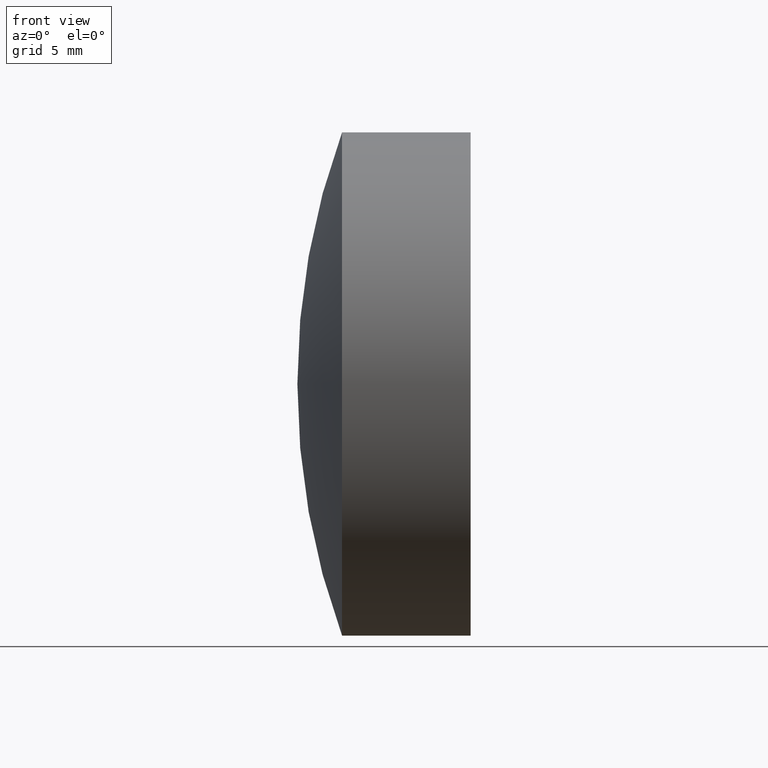
[diagram: clean part render]
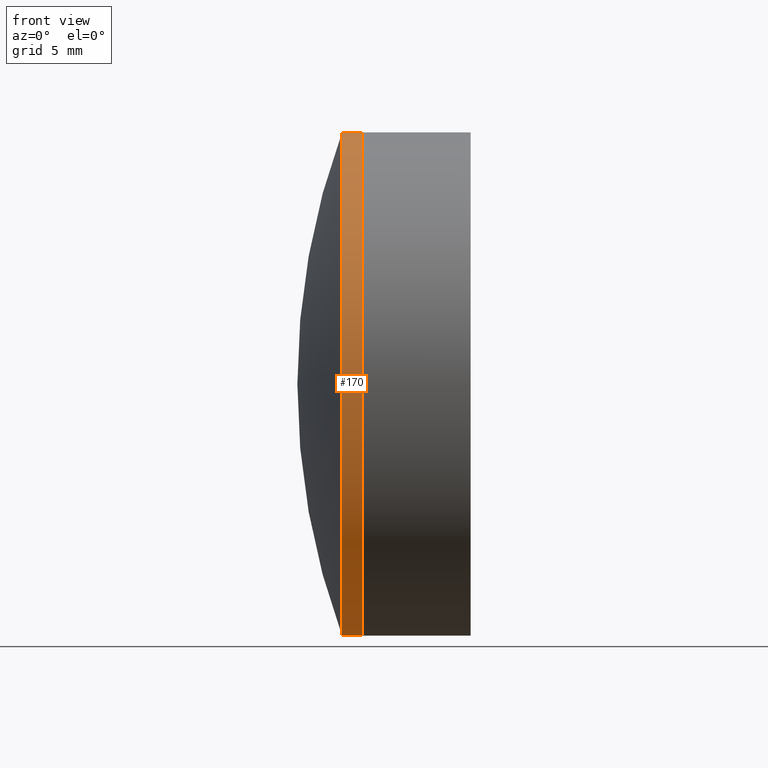
[diagram: same view with one face highlighted and labeled with its STEP entity id]
A machine part, front view. The second image highlights one B-rep face of the part: STEP entity #170.
In plain terms, the highlighted cylindrical surface (partial cylindrical patch) has radius 12.7 mm, axis along (-1, -0, -0).
Its self-contained STEP definition (entity closure, byte-faithful):
#9 = CARTESIAN_POINT ( 'NONE',  ( 51.59793110503332500, 1.555301434917138800E-015, -12.70000000000000300 ) ) ;
#15 = DIRECTION ( 'NONE',  ( -1.000000000000000000, -0.0000000000000000000, -0.0000000000000000000 ) ) ;
#19 = CARTESIAN_POINT ( 'NONE',  ( -0.8160621761658039000, 1.555301434917138400E-015, -12.69999999999999900 ) ) ;
#31 = VERTEX_POINT ( 'NONE', #9 ) ;
#42 = LINE ( 'NONE', #103, #310 ) ;
#52 = DIRECTION ( 'NONE',  ( -1.000000000000000000, -0.0000000000000000000, -0.0000000000000000000 ) ) ;
#60 = AXIS2_PLACEMENT_3D ( 'NONE', #228, #52, #204 ) ;
#79 = LINE ( 'NONE', #19, #80 ) ;
#80 = VECTOR ( 'NONE', #182, 1000.000000000000000 ) ;
#93 = VERTEX_POINT ( 'NONE', #249 ) ;
#96 = CARTESIAN_POINT ( 'NONE',  ( 50.58156345236027800, -1.555301434917137600E-015, 12.70000000000000300 ) ) ;
#103 = CARTESIAN_POINT ( 'NONE',  ( -0.8160621761658039000, 0.0000000000000000000, 12.69999999999999900 ) ) ;
#106 = CIRCLE ( 'NONE', #169, 12.70000000000000100 ) ;
#115 = AXIS2_PLACEMENT_3D ( 'NONE', #220, #327, #162 ) ;
#129 = CARTESIAN_POINT ( 'NONE',  ( 50.58156345236027800, 0.0000000000000000000, -12.69999999999999200 ) ) ;
#140 = FACE_OUTER_BOUND ( 'NONE', #146, .T. ) ;
#146 = EDGE_LOOP ( 'NONE', ( #272, #337, #192, #165 ) ) ;
#162 = DIRECTION ( 'NONE',  ( 0.0000000000000000000, 0.0000000000000000000, 1.000000000000000000 ) ) ;
#165 = ORIENTED_EDGE ( 'NONE', *, *, #178, .F. ) ;
#169 = AXIS2_PLACEMENT_3D ( 'NONE', #200, #15, #180 ) ;
#170 = ADVANCED_FACE ( 'NONE', ( #140 ), #303, .T. ) ;
#178 = EDGE_CURVE ( 'NONE', #212, #345, #289, .T. ) ;
#180 = DIRECTION ( 'NONE',  ( 0.0000000000000000000, 0.0000000000000000000, 1.000000000000000000 ) ) ;
#182 = DIRECTION ( 'NONE',  ( -1.000000000000000000, -0.0000000000000000000, -0.0000000000000000000 ) ) ;
#192 = ORIENTED_EDGE ( 'NONE', *, *, #213, .T. ) ;
#200 = CARTESIAN_POINT ( 'NONE',  ( 51.59793110503332500, 0.0000000000000000000, 0.0000000000000000000 ) ) ;
#204 = DIRECTION ( 'NONE',  ( 0.0000000000000000000, 0.0000000000000000000, 1.000000000000000000 ) ) ;
#209 = EDGE_CURVE ( 'NONE', #31, #212, #79, .T. ) ;
#212 = VERTEX_POINT ( 'NONE', #129 ) ;
#213 = EDGE_CURVE ( 'NONE', #93, #345, #42, .T. ) ;
#220 = CARTESIAN_POINT ( 'NONE',  ( -0.8160621761658039000, 0.0000000000000000000, 0.0000000000000000000 ) ) ;
#227 = DIRECTION ( 'NONE',  ( -1.000000000000000000, -0.0000000000000000000, -0.0000000000000000000 ) ) ;
#228 = CARTESIAN_POINT ( 'NONE',  ( 50.58156345236027800, 0.0000000000000000000, 0.0000000000000000000 ) ) ;
#247 = EDGE_CURVE ( 'NONE', #31, #93, #106, .T. ) ;
#249 = CARTESIAN_POINT ( 'NONE',  ( 51.59793110503332500, 0.0000000000000000000, 12.70000000000000100 ) ) ;
#272 = ORIENTED_EDGE ( 'NONE', *, *, #209, .F. ) ;
#289 = CIRCLE ( 'NONE', #60, 12.69999999999999900 ) ;
#303 = CYLINDRICAL_SURFACE ( 'NONE', #115, 12.69999999999999900 ) ;
#310 = VECTOR ( 'NONE', #227, 1000.000000000000000 ) ;
#327 = DIRECTION ( 'NONE',  ( -1.000000000000000000, -0.0000000000000000000, -0.0000000000000000000 ) ) ;
#337 = ORIENTED_EDGE ( 'NONE', *, *, #247, .T. ) ;
#345 = VERTEX_POINT ( 'NONE', #96 ) ;